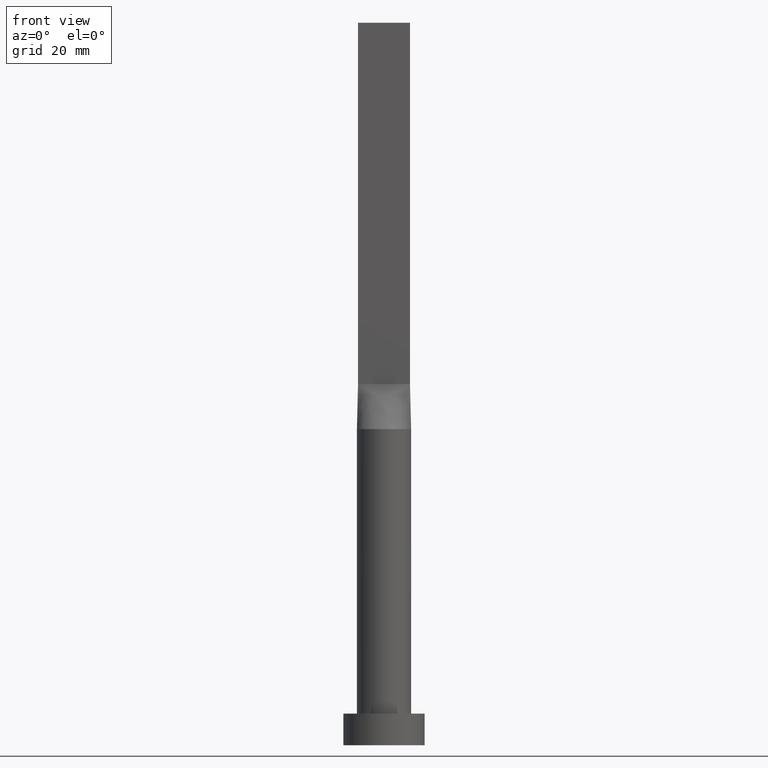
[diagram: clean part render]
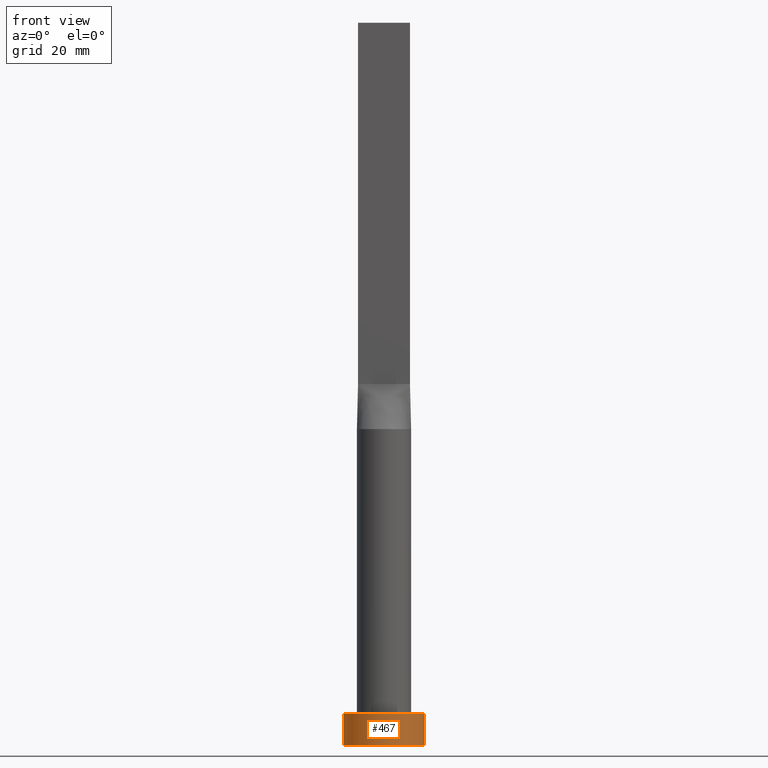
[diagram: same view with one face highlighted and labeled with its STEP entity id]
A machine part, front view. The second image highlights one B-rep face of the part: STEP entity #467.
In plain terms, the highlighted cylindrical surface (partial cylindrical patch) has radius 9 mm, axis along (-0, -0, -1).
Its self-contained STEP definition (entity closure, byte-faithful):
#13 = DIRECTION ( 'NONE',  ( 1.000000000000000000, 0.000000000000000000, 0.000000000000000000 ) ) ;
#26 = DIRECTION ( 'NONE',  ( -0.000000000000000000, -0.000000000000000000, -1.000000000000000000 ) ) ;
#54 = VECTOR ( 'NONE', #258, 1000.000000000000000 ) ;
#65 = DIRECTION ( 'NONE',  ( 0.000000000000000000, 0.000000000000000000, 1.000000000000000000 ) ) ;
#72 = CARTESIAN_POINT ( 'NONE',  ( 9.000000000000000000, 1.102182119232617714E-15, 7.000000000000000000 ) ) ;
#75 = LINE ( 'NONE', #72, #54 ) ;
#89 = ORIENTED_EDGE ( 'NONE', *, *, #534, .F. ) ;
#91 = CARTESIAN_POINT ( 'NONE',  ( -9.000000000000000000, 0.000000000000000000, 7.000000000000000000 ) ) ;
#107 = EDGE_CURVE ( 'NONE', #430, #205, #252, .T. ) ;
#117 = CARTESIAN_POINT ( 'NONE',  ( 9.000000000000000000, 1.102182119232617714E-15, 0.000000000000000000 ) ) ;
#120 = DIRECTION ( 'NONE',  ( -1.000000000000000000, 0.000000000000000000, 0.000000000000000000 ) ) ;
#199 = CARTESIAN_POINT ( 'NONE',  ( -9.000000000000000000, 0.000000000000000000, 7.000000000000000000 ) ) ;
#205 = VERTEX_POINT ( 'NONE', #226 ) ;
#216 = EDGE_CURVE ( 'NONE', #430, #267, #404, .T. ) ;
#226 = CARTESIAN_POINT ( 'NONE',  ( 9.000000000000000000, 1.102182119232617714E-15, 7.000000000000000000 ) ) ;
#252 = CIRCLE ( 'NONE', #588, 9.000000000000000000 ) ;
#257 = EDGE_LOOP ( 'NONE', ( #89, #459, #556, #263 ) ) ;
#258 = DIRECTION ( 'NONE',  ( -0.000000000000000000, -0.000000000000000000, -1.000000000000000000 ) ) ;
#263 = ORIENTED_EDGE ( 'NONE', *, *, #424, .T. ) ;
#267 = VERTEX_POINT ( 'NONE', #554 ) ;
#298 = CARTESIAN_POINT ( 'NONE',  ( 0.000000000000000000, 0.000000000000000000, 7.000000000000000000 ) ) ;
#312 = VERTEX_POINT ( 'NONE', #117 ) ;
#353 = CARTESIAN_POINT ( 'NONE',  ( 0.000000000000000000, 0.000000000000000000, 7.000000000000000000 ) ) ;
#358 = VECTOR ( 'NONE', #596, 1000.000000000000000 ) ;
#374 = AXIS2_PLACEMENT_3D ( 'NONE', #353, #26, #120 ) ;
#404 = LINE ( 'NONE', #91, #358 ) ;
#422 = DIRECTION ( 'NONE',  ( 0.000000000000000000, 0.000000000000000000, 1.000000000000000000 ) ) ;
#424 = EDGE_CURVE ( 'NONE', #267, #312, #482, .T. ) ;
#430 = VERTEX_POINT ( 'NONE', #199 ) ;
#449 = DIRECTION ( 'NONE',  ( 1.000000000000000000, 0.000000000000000000, 0.000000000000000000 ) ) ;
#457 = CYLINDRICAL_SURFACE ( 'NONE', #374, 9.000000000000000000 ) ;
#459 = ORIENTED_EDGE ( 'NONE', *, *, #107, .F. ) ;
#467 = ADVANCED_FACE ( 'NONE', ( #595 ), #457, .T. ) ;
#482 = CIRCLE ( 'NONE', #559, 9.000000000000000000 ) ;
#532 = CARTESIAN_POINT ( 'NONE',  ( 0.000000000000000000, 0.000000000000000000, 0.000000000000000000 ) ) ;
#534 = EDGE_CURVE ( 'NONE', #205, #312, #75, .T. ) ;
#554 = CARTESIAN_POINT ( 'NONE',  ( -9.000000000000000000, 0.000000000000000000, 0.000000000000000000 ) ) ;
#556 = ORIENTED_EDGE ( 'NONE', *, *, #216, .T. ) ;
#559 = AXIS2_PLACEMENT_3D ( 'NONE', #532, #422, #13 ) ;
#588 = AXIS2_PLACEMENT_3D ( 'NONE', #298, #65, #449 ) ;
#595 = FACE_OUTER_BOUND ( 'NONE', #257, .T. ) ;
#596 = DIRECTION ( 'NONE',  ( -0.000000000000000000, -0.000000000000000000, -1.000000000000000000 ) ) ;